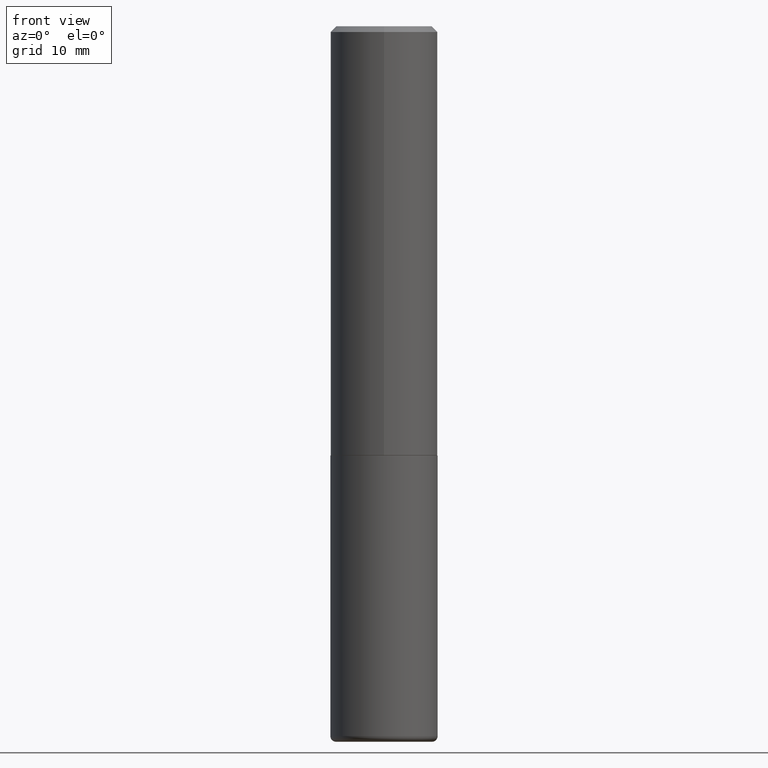
[diagram: clean part render]
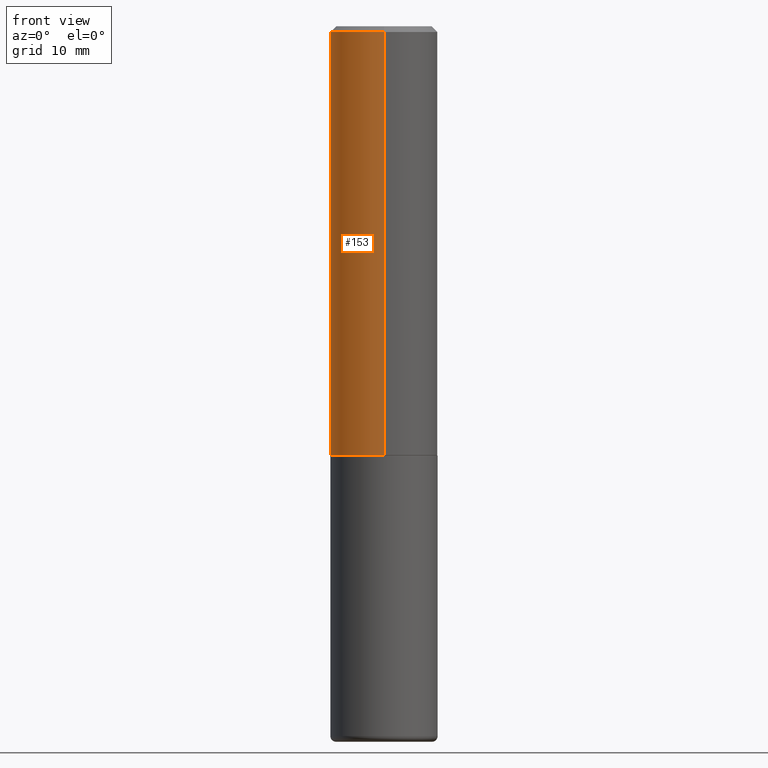
[diagram: same view with one face highlighted and labeled with its STEP entity id]
A machine part, front view. The second image highlights one B-rep face of the part: STEP entity #153.
In plain terms, the highlighted cylindrical surface (partial cylindrical patch) has radius 4.7625 mm, axis along (-0, 0, 1).
Its self-contained STEP definition (entity closure, byte-faithful):
#35 = CARTESIAN_POINT ( 'NONE',  ( -1.309305502066139509E-15, -0.1875000000000054123, -1.498999999999999444 ) ) ;
#96 = DIRECTION ( 'NONE',  ( -6.982962677686266711E-15, -1.000000000000000000, 3.490942761243906423E-15 ) ) ;
#119 = VERTEX_POINT ( 'NONE', #387 ) ;
#144 = CARTESIAN_POINT ( 'NONE',  ( 3.666321494475970828E-29, -5.232923199104616895E-15, -1.499000000000000110 ) ) ;
#151 = VERTEX_POINT ( 'NONE', #35 ) ;
#153 = ADVANCED_FACE ( 'NONE', ( #251 ), #317, .T. ) ;
#154 = CIRCLE ( 'NONE', #204, 0.1875000000000001943 ) ;
#159 = LINE ( 'NONE', #382, #296 ) ;
#161 = EDGE_CURVE ( 'NONE', #151, #372, #159, .T. ) ;
#163 = AXIS2_PLACEMENT_3D ( 'NONE', #361, #357, #232 ) ;
#169 = EDGE_LOOP ( 'NONE', ( #302, #245, #346, #182 ) ) ;
#181 = CARTESIAN_POINT ( 'NONE',  ( -1.286343374582161379E-15, -0.1875000000000000555, -0.01999999999999938979 ) ) ;
#182 = ORIENTED_EDGE ( 'NONE', *, *, #236, .F. ) ;
#185 = VECTOR ( 'NONE', #396, 39.37007874015748143 ) ;
#204 = AXIS2_PLACEMENT_3D ( 'NONE', #144, #333, #281 ) ;
#232 = DIRECTION ( 'NONE',  ( -6.982962677686266711E-15, -1.000000000000000000, 3.483106191921935949E-15 ) ) ;
#235 = CARTESIAN_POINT ( 'NONE',  ( 1.332267629550206781E-15, 0.1874999999999949485, -1.499000000000000554 ) ) ;
#236 = EDGE_CURVE ( 'NONE', #119, #372, #339, .T. ) ;
#245 = ORIENTED_EDGE ( 'NONE', *, *, #288, .T. ) ;
#251 = FACE_OUTER_BOUND ( 'NONE', #169, .T. ) ;
#253 = DIRECTION ( 'NONE',  ( -2.445844892912589156E-29, 3.490942761243906423E-15, 1.000000000000000000 ) ) ;
#281 = DIRECTION ( 'NONE',  ( -6.982962677686265922E-15, -1.000000000000000000, 2.913971193241877611E-15 ) ) ;
#288 = EDGE_CURVE ( 'NONE', #406, #151, #154, .T. ) ;
#296 = VECTOR ( 'NONE', #253, 39.37007874015748143 ) ;
#302 = ORIENTED_EDGE ( 'NONE', *, *, #315, .F. ) ;
#315 = EDGE_CURVE ( 'NONE', #406, #119, #407, .T. ) ;
#317 = CYLINDRICAL_SURFACE ( 'NONE', #332, 0.1875000000000000833 ) ;
#332 = AXIS2_PLACEMENT_3D ( 'NONE', #376, #347, #96 ) ;
#333 = DIRECTION ( 'NONE',  ( -2.445844892912588876E-29, 3.490942761243906817E-15, 1.000000000000000000 ) ) ;
#339 = CIRCLE ( 'NONE', #163, 0.1874999999999999722 ) ;
#346 = ORIENTED_EDGE ( 'NONE', *, *, #161, .T. ) ;
#347 = DIRECTION ( 'NONE',  ( -2.445844892912588876E-29, 3.490942761243906817E-15, 1.000000000000000000 ) ) ;
#357 = DIRECTION ( 'NONE',  ( -2.445844892912588876E-29, 3.490942761243906817E-15, 1.000000000000000000 ) ) ;
#361 = CARTESIAN_POINT ( 'NONE',  ( 4.891689785825187560E-31, -6.981885522487828820E-17, -0.02000000000000004205 ) ) ;
#372 = VERTEX_POINT ( 'NONE', #181 ) ;
#373 = CARTESIAN_POINT ( 'NONE',  ( 1.332267629550188243E-15, 0.1875000000000000833, -6.545517677332327747E-16 ) ) ;
#376 = CARTESIAN_POINT ( 'NONE',  ( 0.000000000000000000, 0.000000000000000000, 0.000000000000000000 ) ) ;
#382 = CARTESIAN_POINT ( 'NONE',  ( -1.309305502066175600E-15, -0.1875000000000000833, 6.545517677332327747E-16 ) ) ;
#387 = CARTESIAN_POINT ( 'NONE',  ( 1.309305502066175205E-15, 0.1874999999999999167, -0.02000000000000069431 ) ) ;
#396 = DIRECTION ( 'NONE',  ( -2.445844892912589156E-29, 3.490942761243906423E-15, 1.000000000000000000 ) ) ;
#406 = VERTEX_POINT ( 'NONE', #235 ) ;
#407 = LINE ( 'NONE', #373, #185 ) ;